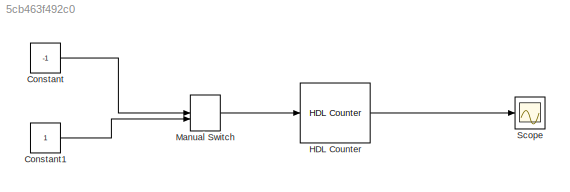
MODEL slx_5cb463f492c0
KIND model
BLOCK [Constant] Constant
  OutDataTypeStr = boolean
  Value = -1
BLOCK [Constant] Constant1
  OutDataTypeStr = boolean
BLOCK [Reference] HDL Counter  REF=hdlsllib/HDL Operations/HDL Counter
  CountDataType = Unsigned
  CountDirPort = on
  CountEnbPort = off
  CountFracLen = 0
  CountFrom = 0
  CountFromType = Initial value
  CountInit = 0
  CountLoadPort = off
  CountMax = 100
  CountResetPort = off
  CountSampTime = 1
  CountStep = 1
  CountType = Free running
  CountWordLen = 8
  Ports = [1, 1]
  SourceBlock = hdlsllib/HDL Operations/HDL Counter
  SourceType = HDL Counter
BLOCK [ManualSwitch] Manual Switch
BLOCK [Scope] Scope
  Floating = off
  NumInputPorts = 1
  Ports = [1]
  ShowLegends = off
LINE Constant1:1 -> Manual Switch:2
LINE Constant:1 -> Manual Switch:1
LINE HDL Counter:1 -> Scope:1
LINE Manual Switch:1 -> HDL Counter:1
